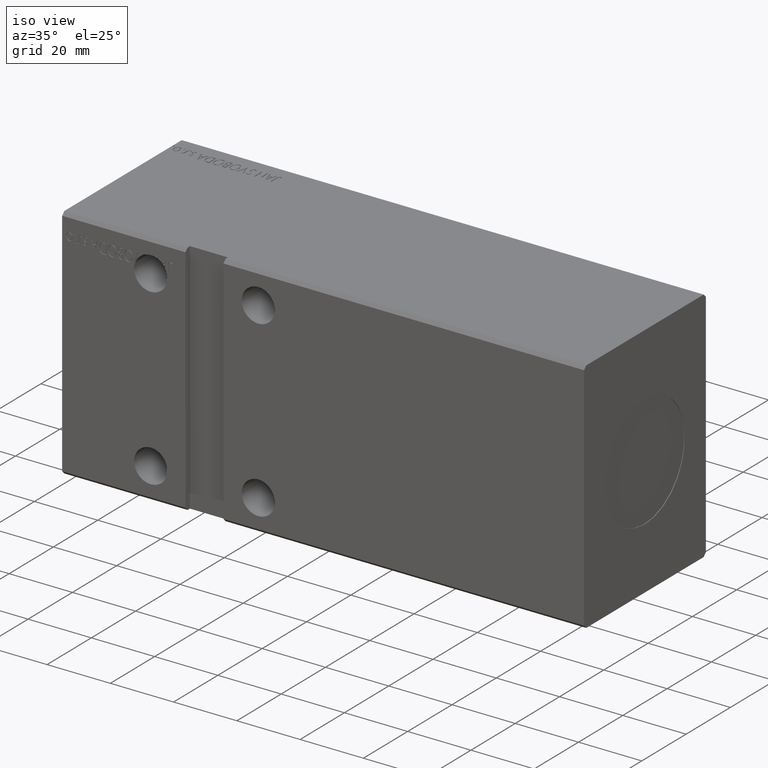
[diagram: clean part render]
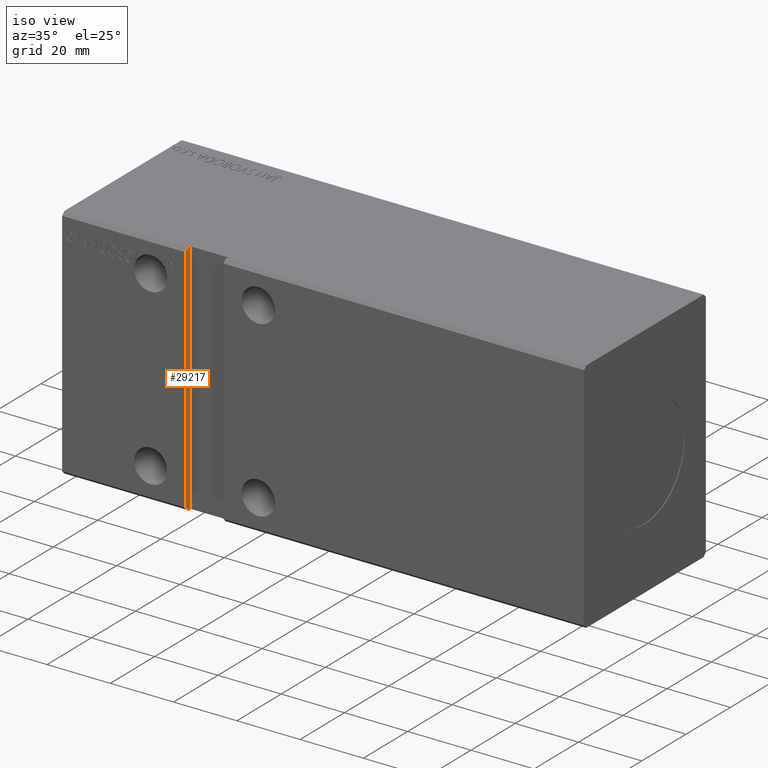
[diagram: same view with one face highlighted and labeled with its STEP entity id]
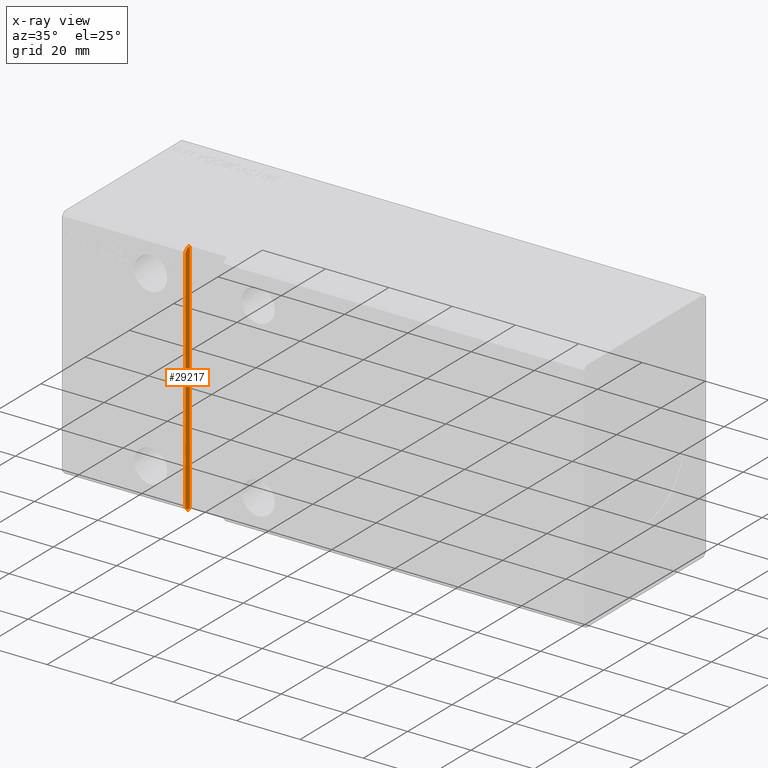
[diagram: x-ray of the same camera — body ghosted, the highlighted face saturated]
A machine part, iso view. The second image highlights one B-rep face of the part: STEP entity #29217.
The next image is the same camera in x-ray: the body ghosted, the highlighted face saturated — about 0% of this face is hidden behind the body in this view.
In plain terms, the highlighted planar face has unit normal (-1, 0, -0).
Its self-contained STEP definition (entity closure, byte-faithful):
#577 = EDGE_LOOP ( 'NONE', ( #20149, #8039, #29880, #26593, #31487, #1518 ) ) ;
#1518 = ORIENTED_EDGE ( 'NONE', *, *, #22757, .F. ) ;
#1557 = VERTEX_POINT ( 'NONE', #19699 ) ;
#1673 = FACE_OUTER_BOUND ( 'NONE', #577, .T. ) ;
#2634 = CARTESIAN_POINT ( 'NONE',  ( 39.00000000000000711, -26.50000000000001421, 37.50000000000000000 ) ) ;
#4563 = CARTESIAN_POINT ( 'NONE',  ( 39.00000000000000711, -26.50000000000000355, -37.49999999999999289 ) ) ;
#4793 = CARTESIAN_POINT ( 'NONE',  ( 39.00000000000000000, -27.50000000000000711, 37.50000000000000711 ) ) ;
#6310 = CARTESIAN_POINT ( 'NONE',  ( 39.00000000000000711, -27.50000000000000355, -36.49999999999998579 ) ) ;
#6516 = VECTOR ( 'NONE', #20562, 1000.000000000000000 ) ;
#6996 = VERTEX_POINT ( 'NONE', #35580 ) ;
#8039 = ORIENTED_EDGE ( 'NONE', *, *, #13508, .F. ) ;
#8553 = DIRECTION ( 'NONE',  ( -1.000000000000000000, 5.095052762929194839E-33, -9.251858538542971581E-17 ) ) ;
#8900 = DIRECTION ( 'NONE',  ( -6.542051911182395090E-17, 0.7071067811865474617, 0.7071067811865474617 ) ) ;
#9176 = VECTOR ( 'NONE', #22175, 1000.000000000000000 ) ;
#9222 = LINE ( 'NONE', #21577, #9176 ) ;
#10583 = CARTESIAN_POINT ( 'NONE',  ( 39.00000000000000711, -25.50000000000000355, -37.49999999999999289 ) ) ;
#11006 = EDGE_CURVE ( 'NONE', #1557, #22466, #14288, .T. ) ;
#13508 = EDGE_CURVE ( 'NONE', #38981, #22466, #22914, .T. ) ;
#14288 = LINE ( 'NONE', #4793, #6516 ) ;
#15708 = VECTOR ( 'NONE', #33419, 1000.000000000000000 ) ;
#16347 = VERTEX_POINT ( 'NONE', #18871 ) ;
#16816 = VECTOR ( 'NONE', #8900, 1000.000000000000114 ) ;
#17038 = CARTESIAN_POINT ( 'NONE',  ( 39.00000000000000711, -27.49999999999999645, -36.49999999999999289 ) ) ;
#17061 = PLANE ( 'NONE',  #29288 ) ;
#18156 = EDGE_CURVE ( 'NONE', #6996, #39108, #40099, .T. ) ;
#18871 = CARTESIAN_POINT ( 'NONE',  ( 39.00000000000000000, -26.50000000000000711, 37.50000000000000711 ) ) ;
#19699 = CARTESIAN_POINT ( 'NONE',  ( 39.00000000000000000, -27.50000000000000711, 36.50000000000000711 ) ) ;
#20149 = ORIENTED_EDGE ( 'NONE', *, *, #11006, .T. ) ;
#20468 = DIRECTION ( 'NONE',  ( -6.542051911182419742E-17, -0.7071067811865451302, 0.7071067811865500152 ) ) ;
#20562 = DIRECTION ( 'NONE',  ( 9.251858538542971581E-17, 9.251858538542971581E-17, -1.000000000000000000 ) ) ;
#20693 = CARTESIAN_POINT ( 'NONE',  ( 39.00000000000000000, -25.50000000000000711, 37.50000000000000711 ) ) ;
#21449 = LINE ( 'NONE', #2634, #16816 ) ;
#21577 = CARTESIAN_POINT ( 'NONE',  ( 39.00000000000000711, -25.50000000000000355, -37.49999999999999289 ) ) ;
#22175 = DIRECTION ( 'NONE',  ( -0.000000000000000000, -1.000000000000000000, -5.507058653894625237E-17 ) ) ;
#22466 = VERTEX_POINT ( 'NONE', #6310 ) ;
#22757 = EDGE_CURVE ( 'NONE', #1557, #16347, #21449, .T. ) ;
#22914 = LINE ( 'NONE', #17038, #29031 ) ;
#23938 = DIRECTION ( 'NONE',  ( -9.251858538542971581E-17, 0.000000000000000000, 1.000000000000000000 ) ) ;
#26593 = ORIENTED_EDGE ( 'NONE', *, *, #18156, .F. ) ;
#26718 = EDGE_CURVE ( 'NONE', #39108, #38981, #9222, .T. ) ;
#26744 = LINE ( 'NONE', #36051, #15708 ) ;
#27104 = VECTOR ( 'NONE', #38733, 1000.000000000000000 ) ;
#29031 = VECTOR ( 'NONE', #20468, 1000.000000000000114 ) ;
#29217 = ADVANCED_FACE ( 'NONE', ( #1673 ), #17061, .F. ) ;
#29288 = AXIS2_PLACEMENT_3D ( 'NONE', #20693, #8553, #23938 ) ;
#29880 = ORIENTED_EDGE ( 'NONE', *, *, #26718, .F. ) ;
#30981 = CARTESIAN_POINT ( 'NONE',  ( 39.00000000000000000, -25.50000000000000711, 37.50000000000000711 ) ) ;
#31487 = ORIENTED_EDGE ( 'NONE', *, *, #34584, .T. ) ;
#33419 = DIRECTION ( 'NONE',  ( -0.000000000000000000, -1.000000000000000000, -5.507058653894625237E-17 ) ) ;
#34584 = EDGE_CURVE ( 'NONE', #6996, #16347, #26744, .T. ) ;
#35580 = CARTESIAN_POINT ( 'NONE',  ( 39.00000000000000000, -25.50000000000000711, 37.50000000000000711 ) ) ;
#36051 = CARTESIAN_POINT ( 'NONE',  ( 39.00000000000000000, -25.50000000000000711, 37.50000000000000711 ) ) ;
#38733 = DIRECTION ( 'NONE',  ( 9.251858538542971581E-17, 9.251858538542971581E-17, -1.000000000000000000 ) ) ;
#38981 = VERTEX_POINT ( 'NONE', #4563 ) ;
#39108 = VERTEX_POINT ( 'NONE', #10583 ) ;
#40099 = LINE ( 'NONE', #30981, #27104 ) ;